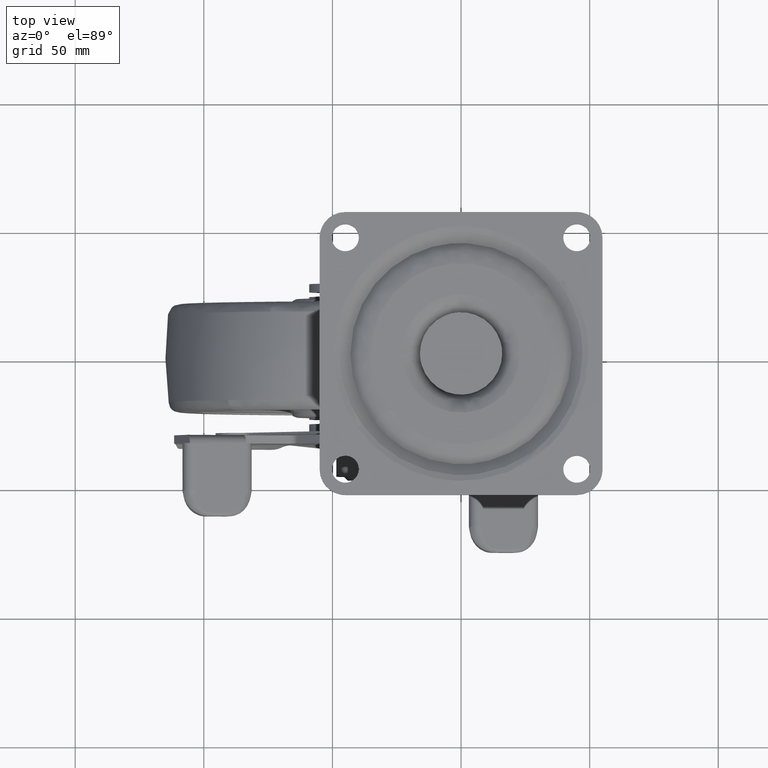
[diagram: clean part render]
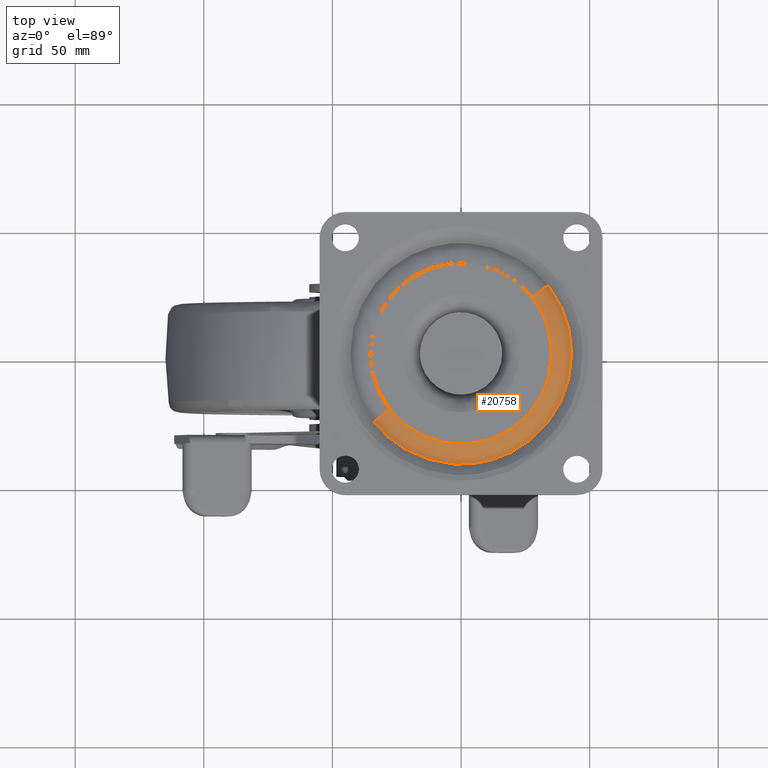
[diagram: same view with one face highlighted and labeled with its STEP entity id]
A machine part, top view. The second image highlights one B-rep face of the part: STEP entity #20758.
In plain terms, the highlighted face is a freeform B-spline surface patch.
Its self-contained STEP definition (entity closure, byte-faithful):
#20456=CARTESIAN_POINT('',(-27.704124889925279,-21.769695681519870,-1.688526E-015));
#20457=VERTEX_POINT('',#20456);
#20471=CARTESIAN_POINT('',(35.234048673858453,1.421085E-014,0.0));
#20472=VERTEX_POINT('',#20471);
#20473=CARTESIAN_POINT('',(-27.704124889925279,-21.769695681519870,-1.688526E-015));
#20474=CARTESIAN_POINT('',(-26.300883096545199,-23.555918221967641,-1.669706E-015));
#20475=CARTESIAN_POINT('',(-23.541343381171650,-26.442879268893140,-1.627511E-015));
#20476=CARTESIAN_POINT('',(-19.610438579646480,-29.362460377391638,-1.557518E-015));
#20477=CARTESIAN_POINT('',(-15.044104130444920,-32.023576784568412,-1.470157E-015));
#20478=CARTESIAN_POINT('',(-11.694486315066101,-33.344368254404422,-1.400842E-015));
#20479=CARTESIAN_POINT('',(-9.061243756791583,-34.048876661908203,-1.343584E-015));
#20480=CARTESIAN_POINT('',(-8.951306893670360,-34.077346246731288,-1.341186E-015));
#20481=CARTESIAN_POINT('',(-8.786726487363783,-34.121400941133317,-1.337607E-015));
#20482=CARTESIAN_POINT('',(-8.621333815413173,-34.162295209759293,-1.333983E-015));
#20483=CARTESIAN_POINT('',(-8.456343598360729,-34.204782405258243,-1.330382E-015));
#20484=CARTESIAN_POINT('',(-8.290562989651500,-34.244070679907743,-1.326735E-015));
#20485=CARTESIAN_POINT('',(-8.125170048437278,-34.284955521398537,-1.323111E-015));
#20486=CARTESIAN_POINT('',(-7.959024056051075,-34.322665405810348,-1.319442E-015));
#20487=CARTESIAN_POINT('',(-7.848493118026016,-34.348780160786070,-1.317010E-015));
#20488=CARTESIAN_POINT('',(-5.467175424833579,-34.889180165043228,-1.264429E-015));
#20489=CARTESIAN_POINT('',(-3.087492917444813,-35.179642576631821,-1.209815E-015));
#20490=CARTESIAN_POINT('',(-0.646122545236569,-35.228130347368612,-1.151718E-015));
#20491=CARTESIAN_POINT('',(-0.532567838198715,-35.229361555029101,-1.149008E-015));
#20492=CARTESIAN_POINT('',(-0.362255175930716,-35.232726411555163,-1.144954E-015));
#20493=CARTESIAN_POINT('',(-0.191913632103100,-35.232862663803878,-1.140874E-015));
#20494=CARTESIAN_POINT('',(-0.078370512044856,-35.233912124851990,-1.138162E-015));
#20495=CARTESIAN_POINT('',(2.477014418558486,-35.236030327450237,-1.076948E-015));
#20496=CARTESIAN_POINT('',(6.849687217035005,-34.771077521192659,-9.683188E-016));
#20497=CARTESIAN_POINT('',(12.796481019499421,-32.984130254348280,-8.110140E-016));
#20498=CARTESIAN_POINT('',(17.363085332084740,-30.783446461746461,-6.833516E-016));
#20499=CARTESIAN_POINT('',(21.727763199758840,-27.896193008045088,-5.548373E-016));
#20500=CARTESIAN_POINT('',(25.382431231033959,-24.628983902074278,-4.401869E-016));
#20501=CARTESIAN_POINT('',(28.212195719673119,-21.209973601811910,-3.440443E-016));
#20502=CARTESIAN_POINT('',(30.677979678221480,-17.526376925828909,-2.544304E-016));
#20503=CARTESIAN_POINT('',(32.056280349386732,-14.774097519198200,-1.985931E-016));
#20504=CARTESIAN_POINT('',(32.861859582614088,-12.711038777295990,-1.621913E-016));
#20505=CARTESIAN_POINT('',(32.942298787987227,-12.498611635603471,-1.585033E-016));
#20506=CARTESIAN_POINT('',(33.063060515719748,-12.180006317658520,-1.529690E-016));
#20507=CARTESIAN_POINT('',(33.179045556494223,-11.859637895686200,-1.475346E-016));
#20508=CARTESIAN_POINT('',(33.291618223119713,-11.538071311500950,-1.421720E-016));
#20509=CARTESIAN_POINT('',(33.346256953384767,-11.376730375516480,-1.395256E-016));
#20510=CARTESIAN_POINT('',(33.456621019688619,-11.054359015044531,-1.342092E-016));
#20511=CARTESIAN_POINT('',(33.578593844703327,-10.675985980320940,-1.281506E-016));
#20512=CARTESIAN_POINT('',(33.696736080929362,-10.296422720895031,-1.221739E-016));
#20513=CARTESIAN_POINT('',(33.761192747303276,-10.078602473762700,-1.188241E-016));
#20514=CARTESIAN_POINT('',(33.810616975448163,-9.915559641115287,-1.162885E-016));
#20515=CARTESIAN_POINT('',(33.857010566426197,-9.751628628472185,-1.138182E-016));
#20516=CARTESIAN_POINT('',(33.888935457949202,-9.642630592814699,-1.121498E-016));
#20517=CARTESIAN_POINT('',(34.182564396473097,-8.604430093211024,-9.650933E-017));
#20518=CARTESIAN_POINT('',(34.417879731207869,-7.608744286637503,-8.261849E-017));
#20519=CARTESIAN_POINT('',(34.620105991863277,-6.548937279974280,-6.898908E-017));
#20520=CARTESIAN_POINT('',(34.640355583161138,-6.437172049292861,-6.757755E-017));
#20521=CARTESIAN_POINT('',(34.672266799653933,-6.269807156495748,-6.542577E-017));
#20522=CARTESIAN_POINT('',(34.700966392687988,-6.101863635788269,-6.334616E-017));
#20523=CARTESIAN_POINT('',(34.731279342561344,-5.934205976818498,-6.123025E-017));
#20524=CARTESIAN_POINT('',(34.758626135365567,-5.766039948003789,-5.918121E-017));
#20525=CARTESIAN_POINT('',(34.823332868746498,-5.373851575180154,-5.438025E-017));
#20526=CARTESIAN_POINT('',(34.881845438567318,-4.980647950302392,-4.971930E-017));
#20527=CARTESIAN_POINT('',(34.933812020713027,-4.586561448706942,-4.520788E-017));
#20528=CARTESIAN_POINT('',(34.956550815892903,-4.417705532891318,-4.326354E-017));
#20529=CARTESIAN_POINT('',(34.976281711801008,-4.248473396983635,-4.138814E-017));
#20530=CARTESIAN_POINT('',(34.997638700520433,-4.079442381869686,-3.947546E-017));
#20531=CARTESIAN_POINT('',(35.015754384816077,-3.910034346158219,-3.763731E-017));
#20532=CARTESIAN_POINT('',(35.028863457154770,-3.797214778701141,-3.638814E-017));
#20533=CARTESIAN_POINT('',(35.095209618360776,-3.176117965828261,-2.965069E-017));
#20534=CARTESIAN_POINT('',(35.141832295816883,-2.610025356330883,-2.384172E-017));
#20535=CARTESIAN_POINT('',(35.178036962454406,-1.986438889214148,-1.780587E-017));
#20536=CARTESIAN_POINT('',(35.183567950197919,-1.872983794208396,-1.673302E-017));
#20537=CARTESIAN_POINT('',(35.193414818996878,-1.702883051287620,-1.508726E-017));
#20538=CARTESIAN_POINT('',(35.200056901173312,-1.532630352272792,-1.351704E-017));
#20539=CARTESIAN_POINT('',(35.208034879018378,-1.362476503725154,-1.191563E-017));
#20540=CARTESIAN_POINT('',(35.215935869655802,-1.135483818848173,-9.844980E-018));
#20541=CARTESIAN_POINT('',(35.222930167377640,-0.908455688998546,-7.795761E-018));
#20542=CARTESIAN_POINT('',(35.227038953000509,-0.681320710116581,-5.814798E-018));
#20543=CARTESIAN_POINT('',(35.232616667443352,-0.397455894718601,-3.328455E-018));
#20544=CARTESIAN_POINT('',(35.233997876106962,-0.170327872549866,-1.412907E-018));
#20545=CARTESIAN_POINT('',(35.234048673858453,1.421085E-014,0.0));
#20546=B_SPLINE_CURVE_WITH_KNOTS('',3,(#20473,#20474,#20475,#20476,#20477,#20478,#20479,#20480,#20481,#20482,#20483,#20484,#20485,#20486,#20487,#20488,#20489,#20490,#20491,#20492,#20493,#20494,#20495,#20496,#20497,#20498,#20499,#20500,#20501,#20502,#20503,#20504,#20505,#20506,#20507,#20508,#20509,#20510,#20511,#20512,#20513,#20514,#20515,#20516,#20517,#20518,#20519,#20520,#20521,#20522,#20523,#20524,#20525,#20526,#20527,#20528,#20529,#20530,#20531,#20532,#20533,#20534,#20535,#20536,#20537,#20538,#20539,#20540,#20541,#20542,#20543,#20544,#20545),.UNSPECIFIED.,.F.,.U.,(4,1,1,1,2,1,1,1,1,1,1,1,2,2,1,1,1,2,1,1,1,1,1,1,1,1,1,1,1,1,1,1,1,1,1,1,1,1,2,2,1,1,1,1,1,1,1,1,1,1,1,1,2,2,1,1,1,1,1,1,1,1,4),(0.000392863183251,6.814807340373392,11.925636322647829,14.651403252816211,22.658320093801070,22.828690036697740,22.999059979594481,23.169428950003471,23.339797920412369,23.510165647856979,23.680533375301689,23.850899563584591,24.021265751867531,31.176421471612020,31.346766878588479,31.517112285564941,31.687444842162289,31.857777398759620,39.353480839494551,44.975474784659191,50.427006836856073,54.515661068506290,60.648627753544083,65.077999779967058,67.803760009698976,73.936786375878967,74.277511245570892,74.447873281528004,74.618235317485187,75.299682119304364,75.469971093575197,75.640338772010281,75.810706450445224,76.492174959627107,76.832907437563833,77.003272828271591,77.173638218979306,77.344002544334572,77.514366869689866,80.580785265490604,80.751161184983005,80.921537104475405,81.091910079337438,81.262283054199543,81.432652571572177,81.603022088944812,82.454765539170594,82.625143219080840,82.795520898991185,82.965893571526621,83.136266244062028,83.306633192410601,83.477000140759188,85.180525096514870,85.350908928573276,85.521292760631738,85.691667303934366,85.862041847237023,86.032312412163719,86.373052990968063,86.543438245644879,86.713823500321695,87.224809877040030),.UNSPECIFIED.);
#20547=EDGE_CURVE('',#20457,#20472,#20546,.T.);
#20549=CARTESIAN_POINT('',(27.704124889925279,21.769695681519909,-1.688526E-015));
#20550=VERTEX_POINT('',#20549);
#20551=CARTESIAN_POINT('',(35.234048673858453,1.421085E-014,0.0));
#20552=CARTESIAN_POINT('',(35.234048674029935,12.187111157326246,-8.442630E-016));
#20553=CARTESIAN_POINT('',(27.704124889925279,21.769695681519909,-1.688526E-015));
#20561=(BOUNDED_CURVE()B_SPLINE_CURVE(2,(#20551,#20552,#20553),.UNSPECIFIED.,.F.,.U.)B_SPLINE_CURVE_WITH_KNOTS((3,3),(0.500000000000000,0.606965446780420),.UNSPECIFIED.)CURVE()GEOMETRIC_REPRESENTATION_ITEM()RATIONAL_B_SPLINE_CURVE((1.0,0.874682183962655,0.856601777381159))REPRESENTATION_ITEM(''));
#20562=EDGE_CURVE('',#20472,#20550,#20561,.T.);
#20650=CARTESIAN_POINT('',(-34.763901261549130,-25.779011868738522,-4.037805502868322));
#20651=CARTESIAN_POINT('',(-34.392435381865042,-26.251739520685479,-4.037805502868322));
#20652=CARTESIAN_POINT('',(-7.286611987117433,-60.746623030270207,-4.037805502868323));
#20653=CARTESIAN_POINT('',(26.730005521576402,-34.016617508693820,-4.037805502868322));
#20654=CARTESIAN_POINT('',(60.746623030270243,-7.286611987117420,-4.037805502868323));
#20655=CARTESIAN_POINT('',(33.640799635506454,27.208271522487877,-4.037805502868321));
#20656=CARTESIAN_POINT('',(33.269333755806585,27.680999174454929,-4.037805502868322));
#20657=CARTESIAN_POINT('',(-32.224568698412014,-23.895981428878482,0.217327820096453));
#20658=CARTESIAN_POINT('',(-31.880236580191561,-24.334178643316353,0.217327820096453));
#20659=CARTESIAN_POINT('',(-6.754360702814712,-56.309380017731911,0.217327820096453));
#20660=CARTESIAN_POINT('',(24.777509657458609,-31.531870360273306,0.217327820096453));
#20661=CARTESIAN_POINT('',(56.309380017731932,-6.754360702814700,0.217327820096453));
#20662=CARTESIAN_POINT('',(31.183504140340105,25.220840671619928,0.217327820096453));
#20663=CARTESIAN_POINT('',(30.839172022105011,25.659037886076419,0.217327820096453));
#20664=CARTESIAN_POINT('',(-27.969401130977381,-20.740581394829473,-0.009131917881025));
#20665=CARTESIAN_POINT('',(-27.670537142232615,-21.120915846464612,-0.009131917881025));
#20666=CARTESIAN_POINT('',(-5.862465550691588,-48.873877937432162,-0.009131917881025));
#20667=CARTESIAN_POINT('',(21.505706193370294,-27.368171744061875,-0.009131917881025));
#20668=CARTESIAN_POINT('',(48.873877937432184,-5.862465550691578,-0.009131917881025));
#20669=CARTESIAN_POINT('',(27.065806345878148,21.890496540292521,-0.009131917881025));
#20670=CARTESIAN_POINT('',(26.766942357120687,22.270830991943832,-0.009131917881025));
#20678=(BOUNDED_SURFACE()B_SPLINE_SURFACE(2,2,((#20650,#20657,#20664),(#20651,#20658,#20665),(#20652,#20659,#20666),(#20653,#20660,#20667),(#20654,#20661,#20668),(#20655,#20662,#20669),(#20656,#20663,#20670)),.UNSPECIFIED.,.F.,.F.,.U.)B_SPLINE_SURFACE_WITH_KNOTS((3,1,2,1,3),(3,3),(0.0,1.433585309616412,73.112850791730935,144.792116273845410,146.225701583523890),(0.0,9.948331751438948),.UNSPECIFIED.)GEOMETRIC_REPRESENTATION_ITEM()RATIONAL_B_SPLINE_SURFACE(((0.940137018669240,0.830975483988182,0.940824293877506),(0.934693597168650,0.826164111043410,0.935376893032872),(0.657079100633676,0.580784090855685,0.657559449951667),(0.929250175668061,0.821352738098638,0.929929492188239),(0.657079100633676,0.580784090855685,0.657559449951667),(0.934693597168886,0.826164111043618,0.935376893033108),(0.940137018669711,0.830975483988599,0.940824293877977)))REPRESENTATION_ITEM('')SURFACE());
#20679=ORIENTED_EDGE('',*,*,#20547,.F.);
#20680=CARTESIAN_POINT('',(-33.810402581609402,-26.567963362714849,-3.699999999613838));
#20681=VERTEX_POINT('',#20680);
#20682=CARTESIAN_POINT('',(-33.810402581609409,-26.567963362714849,-3.699999999613838));
#20683=CARTESIAN_POINT('',(-31.450307522772455,-24.713418185249619,-2.078240E-010));
#20684=CARTESIAN_POINT('',(-27.704124889925286,-21.769695681519870,-1.688526E-015));
#20692=(BOUNDED_CURVE()B_SPLINE_CURVE(2,(#20682,#20683,#20684),.UNSPECIFIED.,.F.,.U.)B_SPLINE_CURVE_WITH_KNOTS((3,3),(-1.597286291544675,-0.398576214676229),.UNSPECIFIED.)CURVE()GEOMETRIC_REPRESENTATION_ITEM()RATIONAL_B_SPLINE_CURVE((0.919896675742625,0.830737085222071,0.920514297905309))REPRESENTATION_ITEM(''));
#20693=EDGE_CURVE('',#20681,#20457,#20692,.T.);
#20694=ORIENTED_EDGE('',*,*,#20693,.F.);
#20695=CARTESIAN_POINT('',(-2.625087200042047,-42.919796332085902,-3.699999999849047));
#20696=VERTEX_POINT('',#20695);
#20697=CARTESIAN_POINT('',(-2.625087200042047,-42.919796332085895,-3.699999999849048));
#20698=CARTESIAN_POINT('',(-21.887003120250991,-41.741687085099493,-3.699999999704097));
#20699=CARTESIAN_POINT('',(-33.810402581609409,-26.567963362714842,-3.699999999613838));
#20707=(BOUNDED_CURVE()B_SPLINE_CURVE(2,(#20697,#20698,#20699),.UNSPECIFIED.,.F.,.U.)B_SPLINE_CURVE_WITH_KNOTS((3,3),(0.760667037758878,0.893034553219550),.UNSPECIFIED.)CURVE()GEOMETRIC_REPRESENTATION_ITEM()RATIONAL_B_SPLINE_CURVE((0.976072041671387,0.834227650317291,0.856601777381149))REPRESENTATION_ITEM(''));
#20708=EDGE_CURVE('',#20696,#20681,#20707,.T.);
#20709=ORIENTED_EDGE('',*,*,#20708,.F.);
#20710=CARTESIAN_POINT('',(43.0,1.421085E-014,-3.700000000000000));
#20711=VERTEX_POINT('',#20710);
#20712=CARTESIAN_POINT('',(43.0,1.421085E-014,-3.700000000000000));
#20713=CARTESIAN_POINT('',(43.000000000039883,-43.000000000011021,-3.699999999989928));
#20714=CARTESIAN_POINT('',(1.601557E-010,-42.999999999961553,-3.699999999857135));
#20715=CARTESIAN_POINT('',(-1.313768821781099,-42.999999999960046,-3.699999999853079));
#20716=CARTESIAN_POINT('',(-2.625087200042047,-42.919796332085895,-3.699999999849048));
#20724=(BOUNDED_CURVE()B_SPLINE_CURVE(2,(#20712,#20713,#20714,#20715,#20716),.UNSPECIFIED.,.F.,.U.)B_SPLINE_CURVE_WITH_KNOTS((3,2,3),(0.500000000000000,0.750000000000000,0.760667037758878),.UNSPECIFIED.)CURVE()GEOMETRIC_REPRESENTATION_ITEM()RATIONAL_B_SPLINE_CURVE((1.0,0.707106781186548,1.0,0.987502787902390,0.976072041671387))REPRESENTATION_ITEM(''));
#20725=EDGE_CURVE('',#20711,#20696,#20724,.T.);
#20726=ORIENTED_EDGE('',*,*,#20725,.F.);
#20727=CARTESIAN_POINT('',(33.810402581609402,26.567963362714870,-3.699999999613835));
#20728=VERTEX_POINT('',#20727);
#20729=CARTESIAN_POINT('',(33.810402581609409,26.567963362714867,-3.699999999613835));
#20730=CARTESIAN_POINT('',(42.999999999876842,14.873277397292199,-3.699999999806919));
#20731=CARTESIAN_POINT('',(43.0,1.421085E-014,-3.700000000000000));
#20739=(BOUNDED_CURVE()B_SPLINE_CURVE(2,(#20729,#20730,#20731),.UNSPECIFIED.,.F.,.U.)B_SPLINE_CURVE_WITH_KNOTS((3,3),(0.393034553219550,0.500000000000000),.UNSPECIFIED.)CURVE()GEOMETRIC_REPRESENTATION_ITEM()RATIONAL_B_SPLINE_CURVE((0.856601777381149,0.874682183962620,1.0))REPRESENTATION_ITEM(''));
#20740=EDGE_CURVE('',#20728,#20711,#20739,.T.);
#20741=ORIENTED_EDGE('',*,*,#20740,.F.);
#20742=CARTESIAN_POINT('',(33.810402581609409,26.567963362714867,-3.699999999613835));
#20743=CARTESIAN_POINT('',(31.450307522772452,24.713418185249640,-2.078254E-010));
#20744=CARTESIAN_POINT('',(27.704124889925286,21.769695681519906,-1.688526E-015));
#20752=(BOUNDED_CURVE()B_SPLINE_CURVE(2,(#20742,#20743,#20744),.UNSPECIFIED.,.F.,.U.)B_SPLINE_CURVE_WITH_KNOTS((3,3),(-1.597286291544675,-0.398576214676230),.UNSPECIFIED.)CURVE()GEOMETRIC_REPRESENTATION_ITEM()RATIONAL_B_SPLINE_CURVE((0.919896675742625,0.830737085222071,0.920514297905309))REPRESENTATION_ITEM(''));
#20753=EDGE_CURVE('',#20728,#20550,#20752,.T.);
#20754=ORIENTED_EDGE('',*,*,#20753,.T.);
#20755=ORIENTED_EDGE('',*,*,#20562,.F.);
#20756=EDGE_LOOP('',(#20679,#20694,#20709,#20726,#20741,#20754,#20755));
#20757=FACE_OUTER_BOUND('',#20756,.T.);
#20758=ADVANCED_FACE('',(#20757),#20678,.T.);